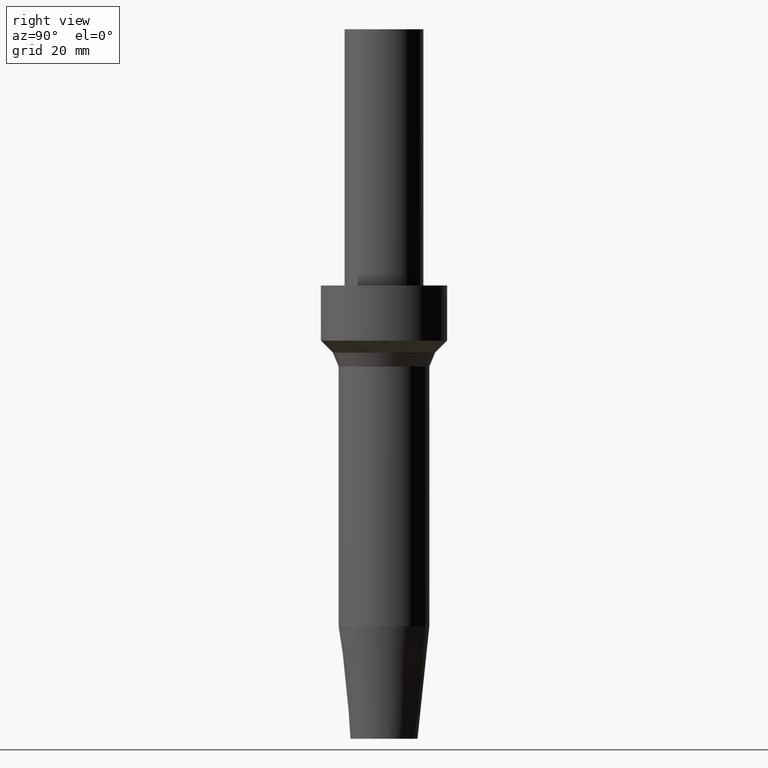
[diagram: clean part render]
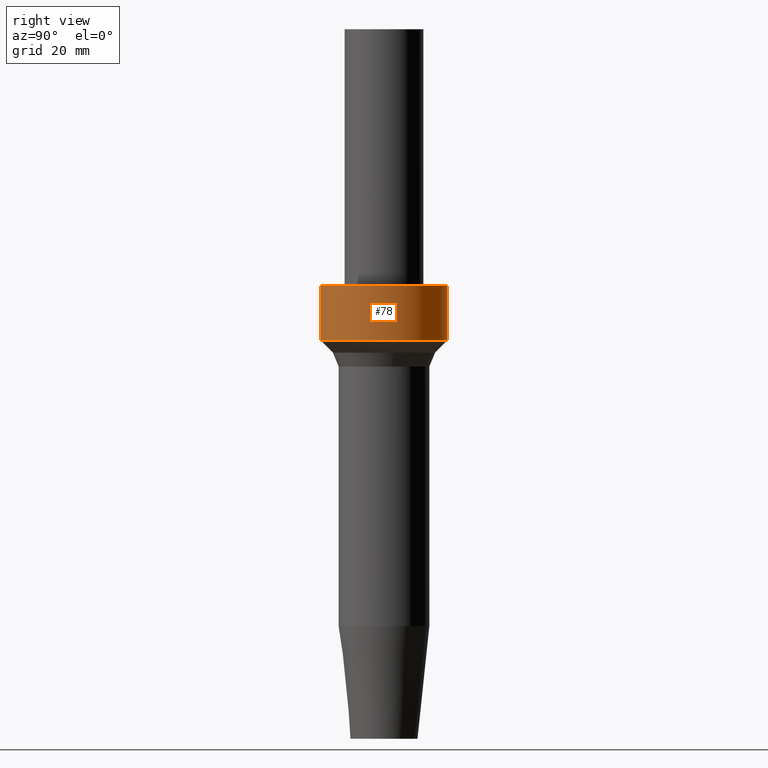
[diagram: same view with one face highlighted and labeled with its STEP entity id]
A machine part, right view. The second image highlights one B-rep face of the part: STEP entity #78.
In plain terms, the highlighted cylindrical surface (bore or boss wall) has radius 16 mm, axis along (-0, 0, 1).
Its self-contained STEP definition (entity closure, byte-faithful):
#78=ADVANCED_FACE('',(#93,#94),#95,.T.);
#93=FACE_BOUND('',#118,.T.);
#94=FACE_BOUND('',#119,.T.);
#95=CYLINDRICAL_SURFACE('',#120,16.0000000000006);
#118=EDGE_LOOP('',(#149));
#119=EDGE_LOOP('',(#150));
#120=AXIS2_PLACEMENT_3D('',#151,#152,#153);
#149=ORIENTED_EDGE('',*,*,#181,.F.);
#150=ORIENTED_EDGE('',*,*,#180,.T.);
#151=CARTESIAN_POINT('',(-6.61309271539614E-015,1.205293544833E-014,108.000000000007));
#152=DIRECTION('',(-6.12323399573677E-017,1.11601254151197E-016,1.0));
#153=DIRECTION('',(2.00645320308564E-033,1.0,-1.11601254151197E-016));
#180=EDGE_CURVE('',#190,#190,#191,.T.);
#181=EDGE_CURVE('',#192,#192,#193,.T.);
#190=VERTEX_POINT('',#206);
#191=CIRCLE('',#207,16.0000000000008);
#192=VERTEX_POINT('',#208);
#193=CIRCLE('',#209,16.0000000000005);
#206=CARTESIAN_POINT('',(-7.0417190950977E-015,16.0000000000008,115.000000000007));
#207=AXIS2_PLACEMENT_3D('',#224,#225,#226);
#208=CARTESIAN_POINT('',(-6.18446633569457E-015,16.0000000000005,101.000000000007));
#209=AXIS2_PLACEMENT_3D('',#227,#228,#229);
#224=CARTESIAN_POINT('',(-7.0417190950977E-015,1.28341442273884E-014,115.000000000007));
#225=DIRECTION('',(6.12323399573676E-017,-1.11601254151197E-016,-1.0));
#226=DIRECTION('',(2.00645320308564E-033,1.0,-1.11601254151197E-016));
#227=CARTESIAN_POINT('',(-6.18446633569457E-015,1.12717266692717E-014,101.000000000007));
#228=DIRECTION('',(6.12323399573677E-017,-1.11601254151197E-016,-1.0));
#229=DIRECTION('',(2.00645320308564E-033,1.0,-1.11601254151197E-016));